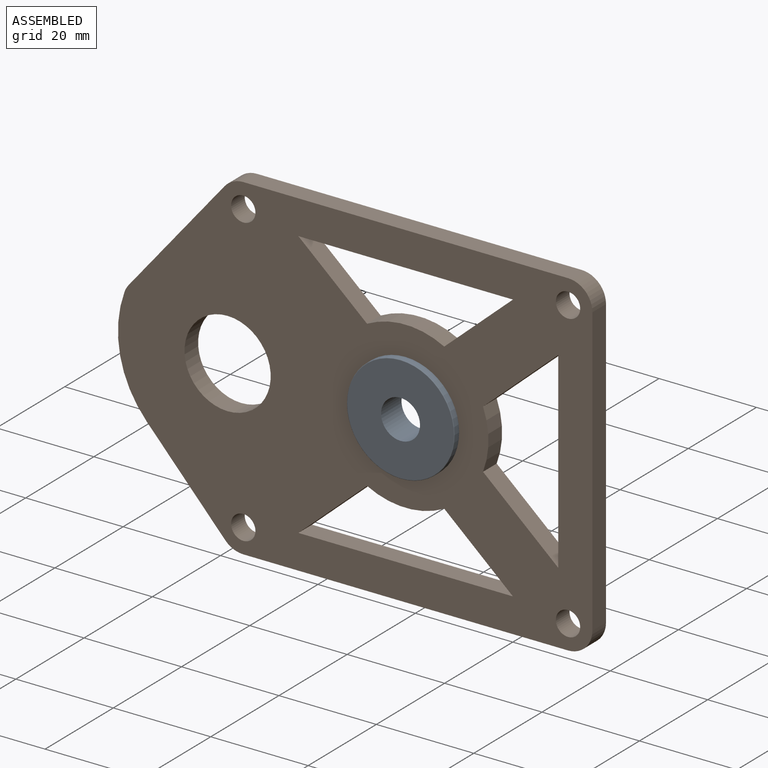
[diagram: assembled view]
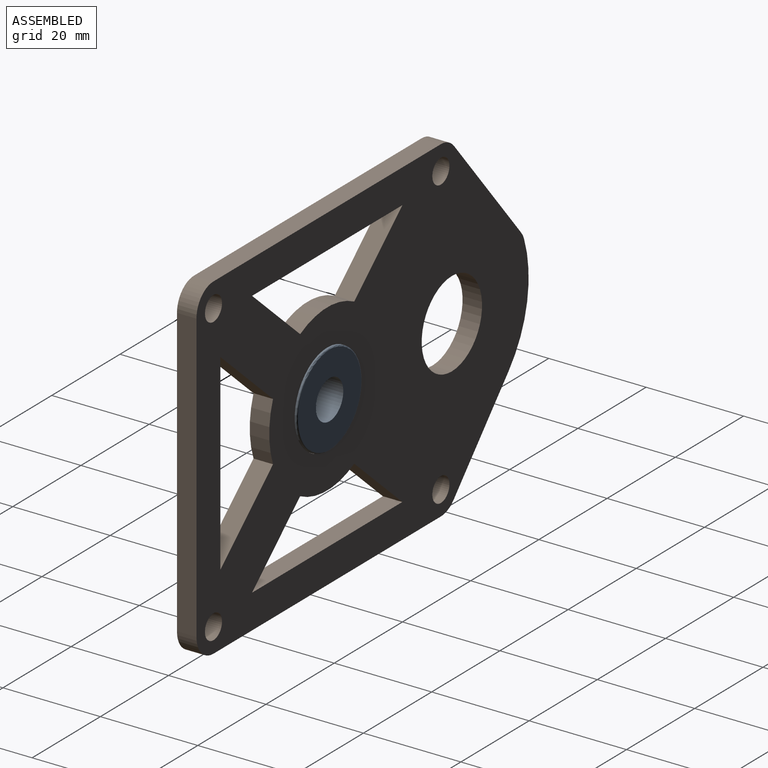
[diagram: assembled view, second angle]
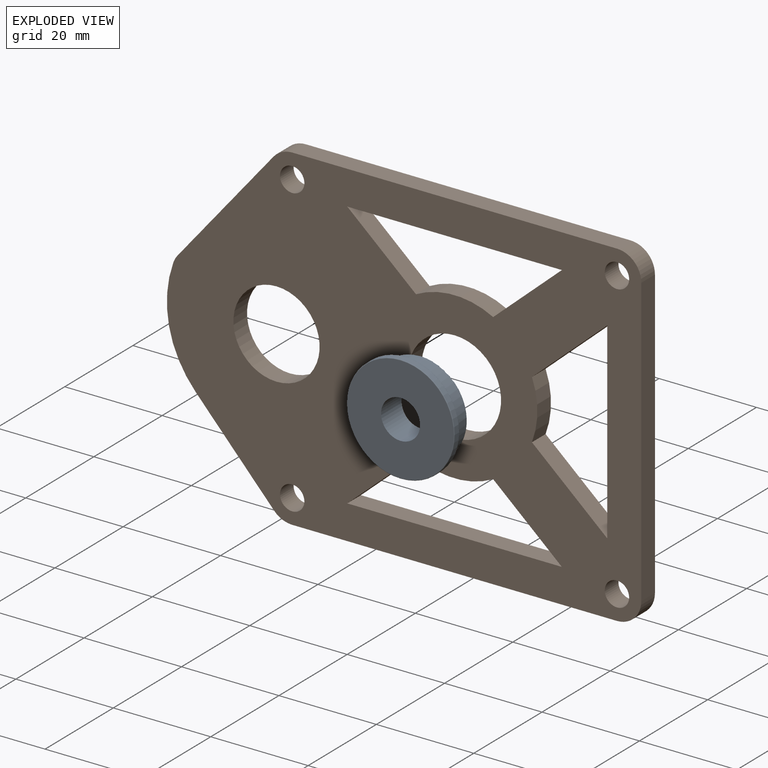
[diagram: exploded view]
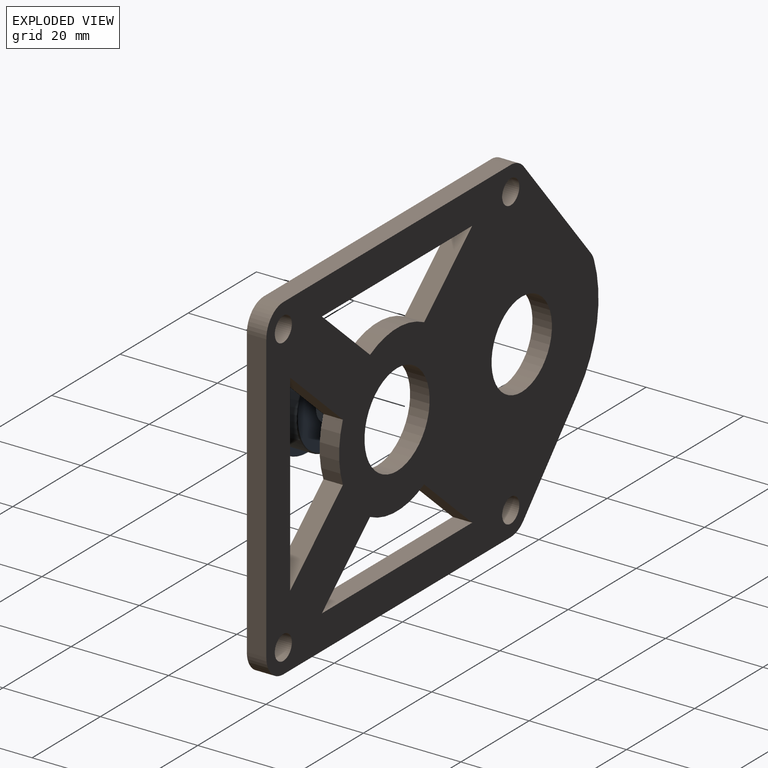
[diagram: exploded view, second angle]
ASSEMBLY  parts=2 mates=2
PART A: 9 faces, bbox 23.9x23.9x6 mm
  f0: torus R=10.92mm, axis (0,0,-1), area 13.8mm2, adj f3,f7
  f1: torus R=10.92mm, axis (0,0,1), area 13.8mm2, adj f3,f8
  f2: torus R=9.25mm, axis (0,0,1), area 23.6mm2, adj f5,f6
  f3: cylinder r=11.05mm len=22.1mm, axis (0,0,-1), area 86.5mm2, adj f0,f1
  f4: cylinder r=4mm len=8mm, axis (0,0,-1), area 150.8mm2, adj f6,f7
  f5: cylinder r=9.5mm len=19mm, axis (0,0,-1), area 253.4mm2, adj f2,f8
  f6: plane 18.49x18.49mm, normal (0,0,1), area 218.3mm2, adj f2,f4
  f7: plane 21.84x21.84mm, normal (0,0,-1), area 324.5mm2, adj f0,f4
  f8: plane 21.84x21.84mm, normal (0,0,1), area 91.2mm2, adj f1,f5
PART B: 31 faces, bbox 97.4x4x69.1 mm
  f0: plane 23.59x19.68mm, normal (0.77,0,-0.64), area 122.9mm2, adj f19,f28,f29,f30
  f1: cylinder r=22.5mm len=22.79mm, axis (0,1,0), area 97.6mm2, adj f2,f28,f29,f30
  f2: plane 17.76x16.16mm, normal (0.74,0,0.67), area 96mm2, adj f1,f3,f28,f29
  f3: cylinder r=5mm len=4mm, axis (0,1,0), area 16.6mm2, adj f2,f4,f28,f29
  f4: plane 66.67x4mm, normal (0,0,1), area 266.7mm2, adj f3,f5,f28,f29
  f5: cylinder r=5mm len=5mm, axis (0,1,0), area 31.4mm2, adj f4,f6,f28,f29
  f6: plane 59.07x4mm, normal (-1,0,0), area 236.3mm2, adj f5,f7,f28,f29
  f7: cylinder r=5mm len=5mm, axis (0,1,0), area 31.4mm2, adj f6,f8,f28,f29
  f8: plane 66.67x4mm, normal (0,0,-1), area 266.7mm2, adj f7,f19,f28,f29
  f9: plane 14.1x12.5mm, normal (-0.66,0,0.75), area 75.4mm2, adj f10,f23,f28,f29
  f10: cylinder r=17mm len=15.85mm, axis (0,1,0), area 66mm2, adj f9,f11,f28,f29
  f11: plane 14.1x12.5mm, normal (0.66,0,0.75), area 75.4mm2, adj f10,f23,f28,f29
  f12: plane 14.1x12.5mm, normal (0.66,0,-0.75), area 75.4mm2, adj f13,f25,f28,f29
  f13: cylinder r=17mm len=15.85mm, axis (0,1,0), area 66mm2, adj f12,f14,f28,f29
  f14: plane 14.1x12.5mm, normal (-0.66,0,-0.75), area 75.4mm2, adj f13,f25,f28,f29
  f15: cylinder r=17mm len=12.12mm, axis (0,1,0), area 49.6mm2, adj f16,f26,f28,f29
  f16: plane 15.45x13.69mm, normal (-0.66,0,0.75), area 82.6mm2, adj f15,f17,f28,f29
  f17: plane 39.5x4mm, normal (1,0,0), area 158mm2, adj f16,f26,f28,f29
  f18: cylinder r=2.5mm len=5mm, axis (0,1,0), area 62.8mm2, adj f28,f29
  f19: cylinder r=5mm len=4mm, axis (0,1,0), area 17.5mm2, adj f0,f8,f28,f29
  f20: cylinder r=2.5mm len=5mm, axis (0,1,0), area 62.8mm2, adj f28,f29
  f21: cylinder r=2.5mm len=5mm, axis (0,1,0), area 62.8mm2, adj f28,f29
  f22: cylinder r=2.5mm len=5mm, axis (0,1,0), area 62.8mm2, adj f28,f29
  f23: plane 44.06x4mm, normal (0,0,-1), area 176.2mm2, adj f9,f11,f28,f29
  f24: cylinder r=9.55mm len=19.1mm, axis (0,1,0), area 240mm2, adj f28,f29
  f25: plane 44.06x4mm, normal (0,0,1), area 176.2mm2, adj f12,f14,f28,f29
  f26: plane 15.45x13.69mm, normal (-0.66,0,-0.75), area 82.6mm2, adj f15,f17,f28,f29
  f27: cylinder r=8.85mm len=17.7mm, axis (0,1,0), area 222.4mm2, adj f28,f29
  f28: plane 97.38x69.08mm, normal (0,-1,0), area 4363.9mm2, adj f0,f1,f2,f3,f4,f5,f6,f7
  f29: plane 97.38x69.08mm, normal (0,1,0), area 4363.9mm2, adj f0,f1,f2,f3,f4,f5,f6,f7
  f30: cylinder r=5mm len=4mm, axis (0,1,0), area 7mm2, adj f0,f1,f28,f29
PLACE A rot(axis=(0,0.71,0.71),180deg) t=(-41.6,-22.06,-17.73)mm
PLACE B rot(axis=(0,1,0),180deg) t=(-41.6,-16.56,-17.73)mm
MATE planar A.f0 <-> B.f24  axis (0,1,0) through (-41.6,-20.56,-17.73)mm
MATE slider B.f24 <-> A.f0  axis (0,1,0) through (-41.6,-18.56,-17.73)mm
